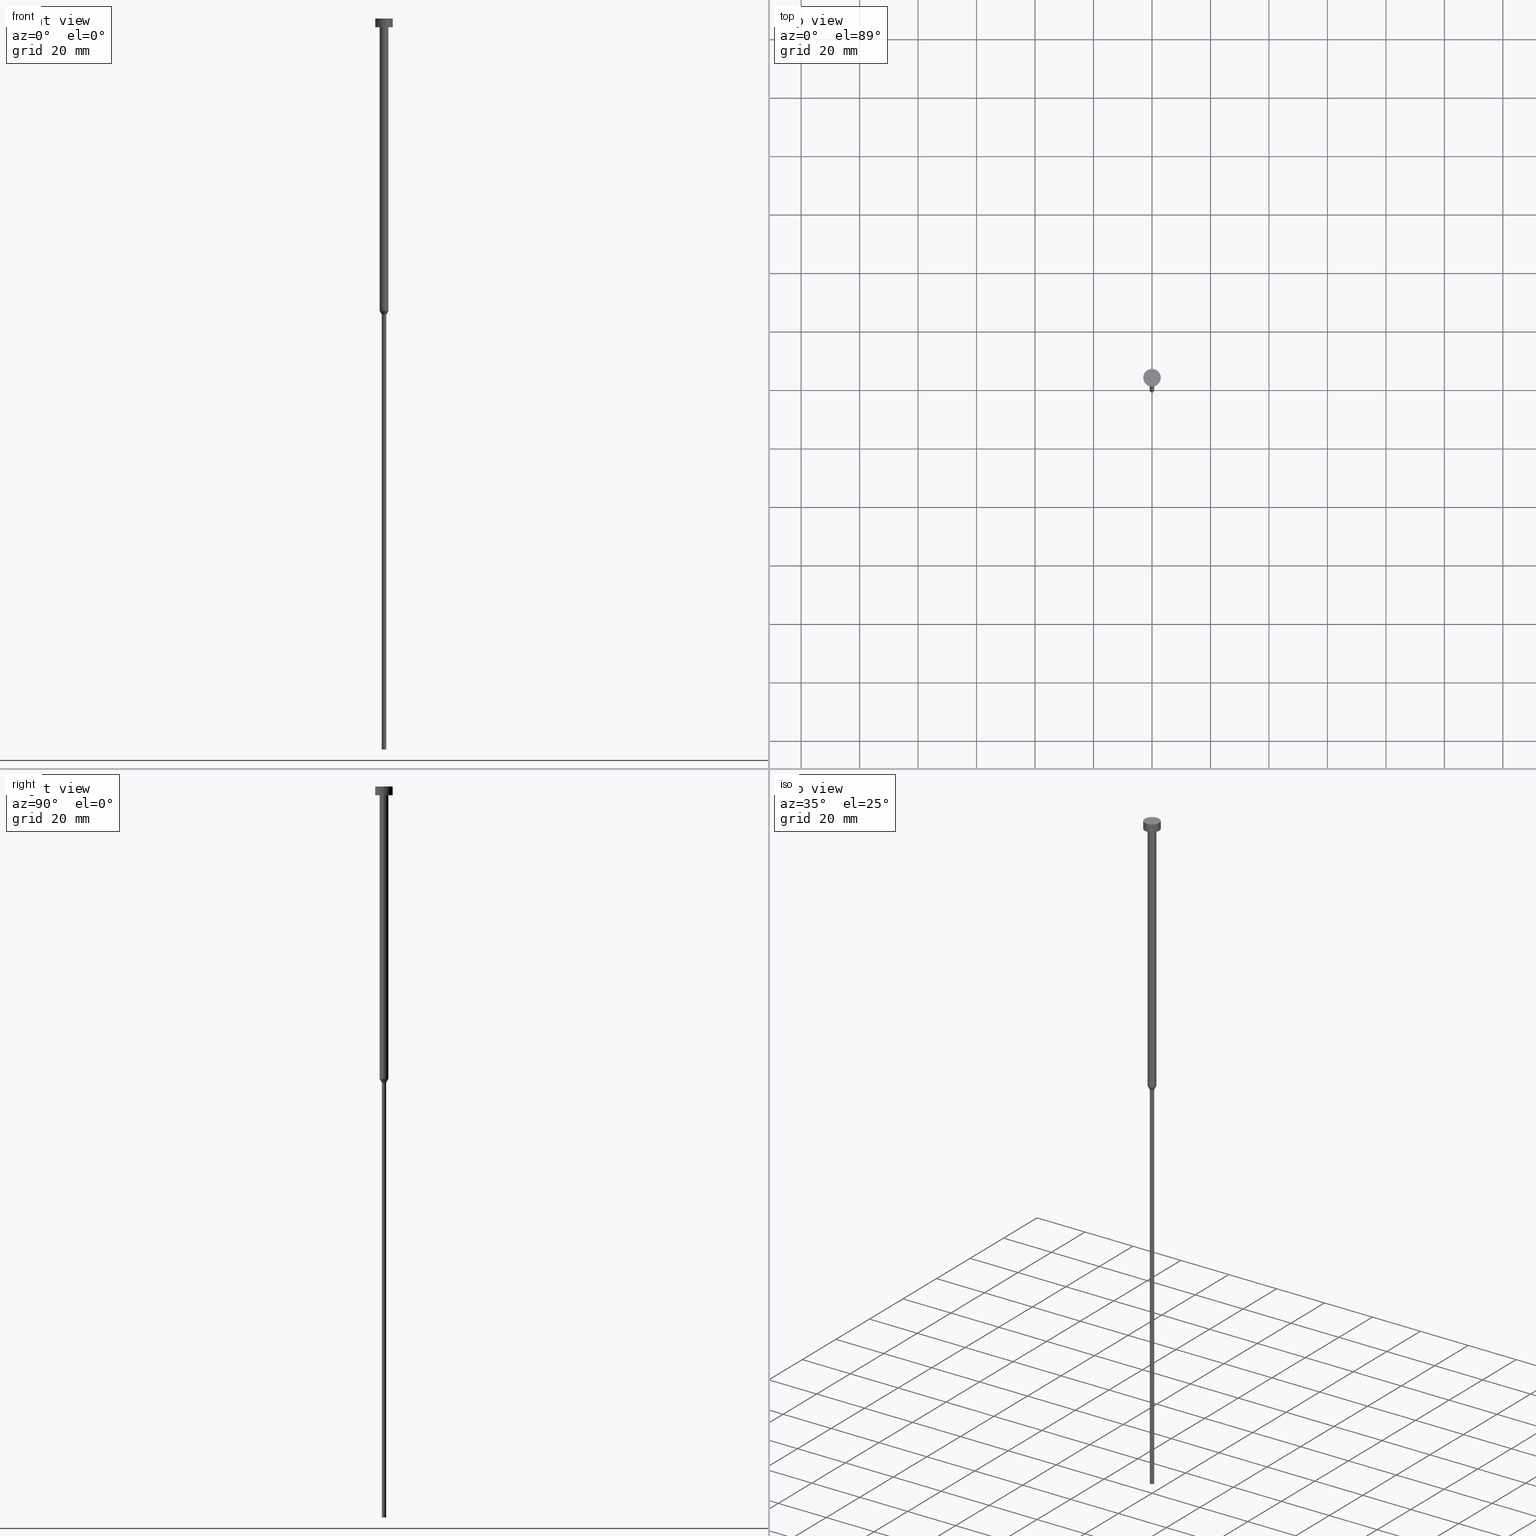
[diagram: canonical four-view strip — front | top / right | iso, engineering-drawing reading convention]
A machine part, canonical four-view strip (front | top / right | iso — engineering-drawing reading convention). The complete STEP part file that produces these views, byte-faithful:
ISO-10303-21;
HEADER;
FILE_DESCRIPTION (( 'STEP AP203' ),
    '1' );
FILE_NAME ('c945.STEP',
    '2023-02-13T09:02:17',
    ( '' ),
    ( '' ),
    'SwSTEP 2.0',
    'SolidWorks 2019',
    '' );
FILE_SCHEMA (( 'CONFIG_CONTROL_DESIGN' ));
ENDSEC;

DATA;
#1 = CARTESIAN_POINT ( 'NONE',  ( 1.500000000000000000, 0.000000000000000000, -100.0000000000000000 ) ) ;
#2 = EDGE_CURVE ( 'NONE', #320, #339, #240, .T. ) ;
#3 = LOCAL_TIME ( 10, 2, 17.00000000000000000, #163 ) ;
#4 = ORIENTED_EDGE ( 'NONE', *, *, #229, .F. ) ;
#5 = ORIENTED_EDGE ( 'NONE', *, *, #2, .T. ) ;
#6 = EDGE_CURVE ( 'NONE', #316, #202, #133, .T. ) ;
#7 = ORIENTED_EDGE ( 'NONE', *, *, #178, .F. ) ;
#8 = EDGE_CURVE ( 'NONE', #320, #56, #161, .T. ) ;
#9 = ORIENTED_EDGE ( 'NONE', *, *, #41, .T. ) ;
#10 = FACE_OUTER_BOUND ( 'NONE', #130, .T. ) ;
#11 = ORIENTED_EDGE ( 'NONE', *, *, #203, .T. ) ;
#12 = DIRECTION ( 'NONE',  ( 1.000000000000000000, 0.000000000000000000, 0.000000000000000000 ) ) ;
#13 = DIRECTION ( 'NONE',  ( -0.000000000000000000, -0.000000000000000000, 1.000000000000000000 ) ) ;
#14 = DIRECTION ( 'NONE',  ( -0.000000000000000000, -0.000000000000000000, 1.000000000000000000 ) ) ;
#15 =( GEOMETRIC_REPRESENTATION_CONTEXT ( 3 ) GLOBAL_UNCERTAINTY_ASSIGNED_CONTEXT ( ( #227 ) ) GLOBAL_UNIT_ASSIGNED_CONTEXT ( ( #306, #153, #144 ) ) REPRESENTATION_CONTEXT ( 'NONE', 'WORKASPACE' ) );
#16 = CALENDAR_DATE ( 2023, 13, 2 ) ;
#17 = CARTESIAN_POINT ( 'NONE',  ( -1.500000000000000000, 1.836970198721029934E-16, 0.000000000000000000 ) ) ;
#18 = APPROVAL_DATE_TIME ( #108, #88 ) ;
#19 = ORIENTED_EDGE ( 'NONE', *, *, #6, .F. ) ;
#20 = ORIENTED_EDGE ( 'NONE', *, *, #268, .T. ) ;
#21 = APPROVAL_ROLE ( '' ) ;
#22 = ADVANCED_FACE ( 'NONE', ( #158 ), #35, .T. ) ;
#23 = DIRECTION ( 'NONE',  ( -0.000000000000000000, -0.000000000000000000, 1.000000000000000000 ) ) ;
#24 = AXIS2_PLACEMENT_3D ( 'NONE', #239, #102, #262 ) ;
#25 = PLANE ( 'NONE',  #64 ) ;
#26 = DIRECTION ( 'NONE',  ( -0.000000000000000000, -0.000000000000000000, 1.000000000000000000 ) ) ;
#27 = CC_DESIGN_APPROVAL ( #352, ( #155 ) ) ;
#28 = DIRECTION ( 'NONE',  ( 0.000000000000000000, -0.000000000000000000, 1.000000000000000000 ) ) ;
#29 = CARTESIAN_POINT ( 'NONE',  ( 0.000000000000000000, 0.000000000000000000, -1.836970198721029934E-16 ) ) ;
#30 = VECTOR ( 'NONE', #272, 1000.000000000000000 ) ;
#31 = ORIENTED_EDGE ( 'NONE', *, *, #123, .F. ) ;
#32 = ORIENTED_EDGE ( 'NONE', *, *, #123, .T. ) ;
#33 = CARTESIAN_POINT ( 'NONE',  ( 0.000000000000000000, 0.000000000000000000, -100.0000000000000000 ) ) ;
#34 = CARTESIAN_POINT ( 'NONE',  ( 1.500000000000000000, 0.000000000000000000, -3.000000000000000888 ) ) ;
#35 = CONICAL_SURFACE ( 'NONE', #24, 1.500000000000000000, 0.5235987755983060321 ) ;
#36 = COORDINATED_UNIVERSAL_TIME_OFFSET ( 1, 0, .AHEAD. ) ;
#37 = DIRECTION ( 'NONE',  ( 1.000000000000000000, 0.000000000000000000, 0.000000000000000000 ) ) ;
#38 = DIRECTION ( 'NONE',  ( 1.000000000000000000, 0.000000000000000000, 0.000000000000000000 ) ) ;
#39 = LOCAL_TIME ( 10, 2, 17.00000000000000000, #344 ) ;
#40 = DIRECTION ( 'NONE',  ( 1.000000000000000000, 0.000000000000000000, 0.000000000000000000 ) ) ;
#41 = EDGE_CURVE ( 'NONE', #131, #254, #63, .T. ) ;
#42 = ADVANCED_FACE ( 'NONE', ( #318 ), #292, .T. ) ;
#43 = DIRECTION ( 'NONE',  ( -0.000000000000000000, -0.000000000000000000, 1.000000000000000000 ) ) ;
#44 = DATE_AND_TIME ( #159, #70 ) ;
#45 = DIRECTION ( 'NONE',  ( 1.000000000000000000, 0.000000000000000000, 0.000000000000000000 ) ) ;
#46 = AXIS2_PLACEMENT_3D ( 'NONE', #324, #299, #50 ) ;
#47 = DATE_AND_TIME ( #104, #3 ) ;
#48 = LINE ( 'NONE', #328, #274 ) ;
#49 = APPROVAL_STATUS ( 'not_yet_approved' ) ;
#50 = DIRECTION ( 'NONE',  ( 1.000000000000000000, 0.000000000000000000, 0.000000000000000000 ) ) ;
#51 = DIRECTION ( 'NONE',  ( -0.000000000000000000, -0.000000000000000000, 1.000000000000000000 ) ) ;
#52 = CC_DESIGN_PERSON_AND_ORGANIZATION_ASSIGNMENT ( #76, #297, ( #155 ) ) ;
#53 = FACE_OUTER_BOUND ( 'NONE', #149, .T. ) ;
#54 = SECURITY_CLASSIFICATION ( '', '', #293 ) ;
#55 = DIRECTION ( 'NONE',  ( -0.000000000000000000, -0.000000000000000000, 1.000000000000000000 ) ) ;
#56 = VERTEX_POINT ( 'NONE', #69 ) ;
#57 = CIRCLE ( 'NONE', #330, 0.7500000000000000000 ) ;
#58 = LINE ( 'NONE', #62, #353 ) ;
#59 = AXIS2_PLACEMENT_3D ( 'NONE', #29, #28, #107 ) ;
#60 = CARTESIAN_POINT ( 'NONE',  ( 0.000000000000000000, 0.000000000000000000, 0.000000000000000000 ) ) ;
#61 = EDGE_CURVE ( 'NONE', #183, #255, #300, .T. ) ;
#62 = CARTESIAN_POINT ( 'NONE',  ( 1.500000000000000000, 0.000000000000000000, 0.000000000000000000 ) ) ;
#63 = LINE ( 'NONE', #17, #244 ) ;
#64 = AXIS2_PLACEMENT_3D ( 'NONE', #351, #224, #327 ) ;
#65 = DIRECTION ( 'NONE',  ( 1.000000000000000000, 0.000000000000000000, 0.000000000000000000 ) ) ;
#66 = EDGE_CURVE ( 'NONE', #56, #122, #126, .T. ) ;
#67 = VERTEX_POINT ( 'NONE', #34 ) ;
#68 = DATE_AND_TIME ( #16, #295 ) ;
#69 = CARTESIAN_POINT ( 'NONE',  ( -0.7500000000000000000, 9.184850993605149670E-17, -250.0000000000000000 ) ) ;
#70 = LOCAL_TIME ( 10, 2, 17.00000000000000000, #190 ) ;
#71 = CIRCLE ( 'NONE', #251, 1.500000000000000000 ) ;
#72 = EDGE_LOOP ( 'NONE', ( #145, #20 ) ) ;
#73 = APPLICATION_CONTEXT ( 'configuration controlled 3d designs of mechanical parts and assemblies' ) ;
#74 = PERSON_AND_ORGANIZATION ( #177, #319 ) ;
#75 = DIRECTION ( 'NONE',  ( 1.000000000000000000, 0.000000000000000000, 0.000000000000000000 ) ) ;
#76 = PERSON_AND_ORGANIZATION ( #177, #319 ) ;
#77 = DIRECTION ( 'NONE',  ( 1.000000000000000000, 0.000000000000000000, 0.000000000000000000 ) ) ;
#78 = AXIS2_PLACEMENT_3D ( 'NONE', #109, #354, #220 ) ;
#79 = CALENDAR_DATE ( 2023, 13, 2 ) ;
#80 = DIRECTION ( 'NONE',  ( -0.000000000000000000, -0.000000000000000000, 1.000000000000000000 ) ) ;
#81 = AXIS2_PLACEMENT_3D ( 'NONE', #154, #14, #40 ) ;
#82 = CARTESIAN_POINT ( 'NONE',  ( 0.000000000000000000, 0.000000000000000000, -101.2990381056766438 ) ) ;
#83 = PRODUCT_RELATED_PRODUCT_CATEGORY ( 'detail', '', ( #157 ) ) ;
#84 = CARTESIAN_POINT ( 'NONE',  ( 1.500000000000000000, 0.000000000000000000, -100.0000000000000000 ) ) ;
#85 = AXIS2_PLACEMENT_3D ( 'NONE', #232, #198, #235 ) ;
#86 = EDGE_CURVE ( 'NONE', #122, #339, #278, .T. ) ;
#87 = AXIS2_PLACEMENT_3D ( 'NONE', #152, #257, #12 ) ;
#88 = APPROVAL ( #49, 'NEUR�EN�' ) ;
#89 = AXIS2_PLACEMENT_3D ( 'NONE', #138, #26, #222 ) ;
#90 = EDGE_LOOP ( 'NONE', ( #98, #234 ) ) ;
#91 = CARTESIAN_POINT ( 'NONE',  ( 3.000000000000000000, 0.000000000000000000, -3.673940397442059868E-16 ) ) ;
#92 = EDGE_LOOP ( 'NONE', ( #259, #279 ) ) ;
#93 = CYLINDRICAL_SURFACE ( 'NONE', #172, 1.500000000000000000 ) ;
#94 = APPLICATION_CONTEXT ( 'configuration controlled 3d designs of mechanical parts and assemblies' ) ;
#95 = PERSON_AND_ORGANIZATION ( #177, #319 ) ;
#96 = ORIENTED_EDGE ( 'NONE', *, *, #41, .F. ) ;
#97 = DIRECTION ( 'NONE',  ( -0.000000000000000000, -0.000000000000000000, 1.000000000000000000 ) ) ;
#98 = ORIENTED_EDGE ( 'NONE', *, *, #6, .T. ) ;
#99 = COORDINATED_UNIVERSAL_TIME_OFFSET ( 1, 0, .AHEAD. ) ;
#100 = CC_DESIGN_PERSON_AND_ORGANIZATION_ASSIGNMENT ( #270, #266, ( #54 ) ) ;
#101 = ORIENTED_EDGE ( 'NONE', *, *, #178, .T. ) ;
#102 = DIRECTION ( 'NONE',  ( -0.000000000000000000, -0.000000000000000000, 1.000000000000000000 ) ) ;
#103 = CIRCLE ( 'NONE', #46, 3.000000000000000000 ) ;
#104 = CALENDAR_DATE ( 2023, 13, 2 ) ;
#105 = DIRECTION ( 'NONE',  ( -0.000000000000000000, -0.000000000000000000, 1.000000000000000000 ) ) ;
#106 = SHAPE_DEFINITION_REPRESENTATION ( #287, #301 ) ;
#107 = DIRECTION ( 'NONE',  ( 1.000000000000000000, 0.000000000000000000, 0.000000000000000000 ) ) ;
#108 = DATE_AND_TIME ( #79, #39 ) ;
#109 = CARTESIAN_POINT ( 'NONE',  ( 0.000000000000000000, 0.000000000000000000, -3.000000000000000888 ) ) ;
#110 = APPROVAL_PERSON_ORGANIZATION ( #341, #88, #349 ) ;
#111 = FACE_OUTER_BOUND ( 'NONE', #90, .T. ) ;
#112 = EDGE_CURVE ( 'NONE', #131, #230, #264, .T. ) ;
#113 = CARTESIAN_POINT ( 'NONE',  ( 0.000000000000000000, 0.000000000000000000, 0.000000000000000000 ) ) ;
#114 = DIRECTION ( 'NONE',  ( -0.000000000000000000, -0.000000000000000000, 1.000000000000000000 ) ) ;
#115 = ORIENTED_EDGE ( 'NONE', *, *, #286, .F. ) ;
#116 = CIRCLE ( 'NONE', #167, 0.7500000000000000000 ) ;
#117 = ORIENTED_EDGE ( 'NONE', *, *, #219, .F. ) ;
#118 = DIRECTION ( 'NONE',  ( 1.000000000000000000, 0.000000000000000000, 0.000000000000000000 ) ) ;
#119 = AXIS2_PLACEMENT_3D ( 'NONE', #33, #97, #118 ) ;
#120 = EDGE_LOOP ( 'NONE', ( #96, #309, #277, #333 ) ) ;
#121 = PERSON_AND_ORGANIZATION ( #177, #319 ) ;
#122 = VERTEX_POINT ( 'NONE', #216 ) ;
#123 = EDGE_CURVE ( 'NONE', #122, #131, #355, .T. ) ;
#124 = FACE_OUTER_BOUND ( 'NONE', #253, .T. ) ;
#125 = VECTOR ( 'NONE', #151, 1000.000000000000000 ) ;
#126 = LINE ( 'NONE', #181, #201 ) ;
#127 = ADVANCED_FACE ( 'NONE', ( #218 ), #194, .T. ) ;
#128 = ORIENTED_EDGE ( 'NONE', *, *, #8, .T. ) ;
#129 = AXIS2_PLACEMENT_3D ( 'NONE', #345, #185, #38 ) ;
#130 = EDGE_LOOP ( 'NONE', ( #31, #143, #290, #252 ) ) ;
#131 = VERTEX_POINT ( 'NONE', #187 ) ;
#132 = FACE_OUTER_BOUND ( 'NONE', #288, .T. ) ;
#133 = CIRCLE ( 'NONE', #210, 3.000000000000000000 ) ;
#134 = APPROVAL_STATUS ( 'not_yet_approved' ) ;
#135 = CYLINDRICAL_SURFACE ( 'NONE', #223, 3.000000000000000000 ) ;
#136 = AXIS2_PLACEMENT_3D ( 'NONE', #189, #350, #296 ) ;
#137 = ADVANCED_FACE ( 'NONE', ( #191 ), #135, .T. ) ;
#138 = CARTESIAN_POINT ( 'NONE',  ( 0.000000000000000000, 0.000000000000000000, -3.000000000000000888 ) ) ;
#139 = EDGE_CURVE ( 'NONE', #56, #320, #57, .T. ) ;
#140 = CARTESIAN_POINT ( 'NONE',  ( 0.000000000000000000, 0.000000000000000000, 0.000000000000000000 ) ) ;
#141 = CC_DESIGN_APPROVAL ( #263, ( #54 ) ) ;
#142 = EDGE_LOOP ( 'NONE', ( #310, #343, #19, #336 ) ) ;
#143 = ORIENTED_EDGE ( 'NONE', *, *, #86, .T. ) ;
#144 =( NAMED_UNIT ( * ) SI_UNIT ( $, .STERADIAN. ) SOLID_ANGLE_UNIT ( ) );
#145 = ORIENTED_EDGE ( 'NONE', *, *, #249, .T. ) ;
#146 = ADVANCED_FACE ( 'NONE', ( #294, #246 ), #25, .T. ) ;
#147 = CARTESIAN_POINT ( 'NONE',  ( 0.000000000000000000, 0.000000000000000000, 0.000000000000000000 ) ) ;
#148 = CONICAL_SURFACE ( 'NONE', #282, 1.500000000000000000, 0.5235987755983060321 ) ;
#149 = EDGE_LOOP ( 'NONE', ( #331, #265, #5, #175 ) ) ;
#150 = MANIFOLD_SOLID_BREP ( 'Rotovat1', #342 ) ;
#151 = DIRECTION ( 'NONE',  ( 0.5000000000000062172, 0.000000000000000000, 0.8660254037844350439 ) ) ;
#152 = CARTESIAN_POINT ( 'NONE',  ( 0.000000000000000000, 0.000000000000000000, -101.2990381056766438 ) ) ;
#153 =( NAMED_UNIT ( * ) PLANE_ANGLE_UNIT ( ) SI_UNIT ( $, .RADIAN. ) );
#154 = CARTESIAN_POINT ( 'NONE',  ( 0.000000000000000000, 0.000000000000000000, -3.000000000000000888 ) ) ;
#155 = PRODUCT_DEFINITION ( 'NEZN�M�', '', #221, #305 ) ;
#156 = CARTESIAN_POINT ( 'NONE',  ( 0.000000000000000000, 0.000000000000000000, 0.000000000000000000 ) ) ;
#157 = PRODUCT ( 'c945', 'c945', '', ( #179 ) ) ;
#158 = FACE_OUTER_BOUND ( 'NONE', #242, .T. ) ;
#159 = CALENDAR_DATE ( 2023, 13, 2 ) ;
#160 = CARTESIAN_POINT ( 'NONE',  ( 0.000000000000000000, 0.000000000000000000, -100.0000000000000000 ) ) ;
#161 = CIRCLE ( 'NONE', #129, 0.7500000000000000000 ) ;
#162 = DIRECTION ( 'NONE',  ( -0.000000000000000000, -0.000000000000000000, 1.000000000000000000 ) ) ;
#163 = COORDINATED_UNIVERSAL_TIME_OFFSET ( 1, 0, .AHEAD. ) ;
#164 = DIRECTION ( 'NONE',  ( -0.000000000000000000, -0.000000000000000000, 1.000000000000000000 ) ) ;
#165 = APPROVAL_PERSON_ORGANIZATION ( #95, #352, #312 ) ;
#166 = CARTESIAN_POINT ( 'NONE',  ( -1.500000000000000000, 1.836970198721029934E-16, -100.0000000000000000 ) ) ;
#167 = AXIS2_PLACEMENT_3D ( 'NONE', #82, #23, #45 ) ;
#168 = LINE ( 'NONE', #171, #30 ) ;
#169 = CC_DESIGN_PERSON_AND_ORGANIZATION_ASSIGNMENT ( #74, #321, ( #221 ) ) ;
#170 = CARTESIAN_POINT ( 'NONE',  ( -3.000000000000000000, 3.673940397442059868E-16, -3.000000000000000888 ) ) ;
#171 = CARTESIAN_POINT ( 'NONE',  ( -3.000000000000000000, 3.673940397442059868E-16, 0.000000000000000000 ) ) ;
#172 = AXIS2_PLACEMENT_3D ( 'NONE', #284, #314, #65 ) ;
#173 = CARTESIAN_POINT ( 'NONE',  ( 0.7500000000000000000, 0.000000000000000000, -250.0000000000000000 ) ) ;
#174 = VECTOR ( 'NONE', #184, 1000.000000000000000 ) ;
#175 = ORIENTED_EDGE ( 'NONE', *, *, #86, .F. ) ;
#176 = ORIENTED_EDGE ( 'NONE', *, *, #8, .F. ) ;
#177 = PERSON ( 'NEUR�EN�', 'NEUR�EN�', 'NEUR�EN�', ('NEUR�EN�'), ('NEUR�EN�'), ('NEUR�EN�') ) ;
#178 = EDGE_CURVE ( 'NONE', #339, #122, #116, .T. ) ;
#179 = MECHANICAL_CONTEXT ( 'NONE', #73, 'mechanical' ) ;
#180 = CIRCLE ( 'NONE', #78, 3.000000000000000000 ) ;
#181 = CARTESIAN_POINT ( 'NONE',  ( -0.7500000000000000000, 9.184850993605149670E-17, 0.000000000000000000 ) ) ;
#182 = CYLINDRICAL_SURFACE ( 'NONE', #346, 0.7500000000000000000 ) ;
#183 = VERTEX_POINT ( 'NONE', #170 ) ;
#184 = DIRECTION ( 'NONE',  ( -0.000000000000000000, -0.000000000000000000, 1.000000000000000000 ) ) ;
#185 = DIRECTION ( 'NONE',  ( -0.000000000000000000, -0.000000000000000000, 1.000000000000000000 ) ) ;
#186 = ORIENTED_EDGE ( 'NONE', *, *, #2, .F. ) ;
#187 = CARTESIAN_POINT ( 'NONE',  ( -1.500000000000000000, 1.836970198721029934E-16, -100.0000000000000000 ) ) ;
#188 = APPROVAL_DATE_TIME ( #68, #263 ) ;
#189 = CARTESIAN_POINT ( 'NONE',  ( 0.000000000000000000, 0.000000000000000000, -250.0000000000000000 ) ) ;
#190 = COORDINATED_UNIVERSAL_TIME_OFFSET ( 1, 0, .AHEAD. ) ;
#191 = FACE_OUTER_BOUND ( 'NONE', #142, .T. ) ;
#192 = VECTOR ( 'NONE', #323, 1000.000000000000000 ) ;
#193 = CARTESIAN_POINT ( 'NONE',  ( 3.000000000000000000, 0.000000000000000000, -3.000000000000000888 ) ) ;
#194 = CYLINDRICAL_SURFACE ( 'NONE', #285, 0.7500000000000000000 ) ;
#195 = ADVANCED_FACE ( 'NONE', ( #132 ), #275, .T. ) ;
#196 = ORIENTED_EDGE ( 'NONE', *, *, #304, .T. ) ;
#197 = LOCAL_TIME ( 10, 2, 17.00000000000000000, #36 ) ;
#198 = DIRECTION ( 'NONE',  ( -0.000000000000000000, -0.000000000000000000, 1.000000000000000000 ) ) ;
#199 = ADVANCED_FACE ( 'NONE', ( #111 ), #269, .T. ) ;
#200 = CARTESIAN_POINT ( 'NONE',  ( 0.7500000000000000000, 0.000000000000000000, -101.2990381056766438 ) ) ;
#201 = VECTOR ( 'NONE', #237, 1000.000000000000000 ) ;
#202 = VERTEX_POINT ( 'NONE', #245 ) ;
#203 = EDGE_CURVE ( 'NONE', #255, #316, #48, .T. ) ;
#204 = DIRECTION ( 'NONE',  ( 1.000000000000000000, 0.000000000000000000, 0.000000000000000000 ) ) ;
#205 = ORIENTED_EDGE ( 'NONE', *, *, #61, .T. ) ;
#206 = APPROVAL_STATUS ( 'not_yet_approved' ) ;
#207 = CC_DESIGN_APPROVAL ( #88, ( #221 ) ) ;
#208 = EDGE_LOOP ( 'NONE', ( #4, #205, #11, #117 ) ) ;
#209 = FACE_OUTER_BOUND ( 'NONE', #120, .T. ) ;
#210 = AXIS2_PLACEMENT_3D ( 'NONE', #212, #211, #214 ) ;
#211 = DIRECTION ( 'NONE',  ( -0.000000000000000000, -0.000000000000000000, 1.000000000000000000 ) ) ;
#212 = CARTESIAN_POINT ( 'NONE',  ( 0.000000000000000000, 0.000000000000000000, -3.673940397442059868E-16 ) ) ;
#213 = EDGE_CURVE ( 'NONE', #255, #183, #180, .T. ) ;
#214 = DIRECTION ( 'NONE',  ( 1.000000000000000000, 0.000000000000000000, 0.000000000000000000 ) ) ;
#215 = PERSON_AND_ORGANIZATION ( #177, #319 ) ;
#216 = CARTESIAN_POINT ( 'NONE',  ( -0.7500000000000000000, 9.184850993605149670E-17, -101.2990381056766438 ) ) ;
#217 = PERSON_AND_ORGANIZATION ( #177, #319 ) ;
#218 = FACE_OUTER_BOUND ( 'NONE', #313, .T. ) ;
#219 = EDGE_CURVE ( 'NONE', #202, #316, #103, .T. ) ;
#220 = DIRECTION ( 'NONE',  ( 1.000000000000000000, 0.000000000000000000, 0.000000000000000000 ) ) ;
#221 = PRODUCT_DEFINITION_FORMATION_WITH_SPECIFIED_SOURCE ( 'LIBOVOLN�', '', #157, .NOT_KNOWN. ) ;
#222 = DIRECTION ( 'NONE',  ( 1.000000000000000000, 0.000000000000000000, 0.000000000000000000 ) ) ;
#223 = AXIS2_PLACEMENT_3D ( 'NONE', #113, #271, #322 ) ;
#224 = DIRECTION ( 'NONE',  ( 0.000000000000000000, 0.000000000000000000, -1.000000000000000000 ) ) ;
#225 = CC_DESIGN_PERSON_AND_ORGANIZATION_ASSIGNMENT ( #121, #233, ( #157 ) ) ;
#226 = CYLINDRICAL_SURFACE ( 'NONE', #85, 1.500000000000000000 ) ;
#227 = UNCERTAINTY_MEASURE_WITH_UNIT (LENGTH_MEASURE( 1.000000000000000082E-05 ), #306, 'distance_accuracy_value', 'NONE');
#228 = ORIENTED_EDGE ( 'NONE', *, *, #66, .T. ) ;
#229 = EDGE_CURVE ( 'NONE', #183, #202, #168, .T. ) ;
#230 = VERTEX_POINT ( 'NONE', #84 ) ;
#231 = ORIENTED_EDGE ( 'NONE', *, *, #249, .F. ) ;
#232 = CARTESIAN_POINT ( 'NONE',  ( 0.000000000000000000, 0.000000000000000000, 0.000000000000000000 ) ) ;
#233 = PERSON_AND_ORGANIZATION_ROLE ( 'design_owner' ) ;
#234 = ORIENTED_EDGE ( 'NONE', *, *, #219, .T. ) ;
#235 = DIRECTION ( 'NONE',  ( 1.000000000000000000, 0.000000000000000000, 0.000000000000000000 ) ) ;
#236 = CIRCLE ( 'NONE', #119, 1.500000000000000000 ) ;
#237 = DIRECTION ( 'NONE',  ( -0.000000000000000000, -0.000000000000000000, 1.000000000000000000 ) ) ;
#238 = DATE_TIME_ROLE ( 'creation_date' ) ;
#239 = CARTESIAN_POINT ( 'NONE',  ( 0.000000000000000000, 0.000000000000000000, -100.0000000000000000 ) ) ;
#240 = LINE ( 'NONE', #348, #174 ) ;
#241 = CIRCLE ( 'NONE', #89, 1.500000000000000000 ) ;
#242 = EDGE_LOOP ( 'NONE', ( #101, #32, #283, #307 ) ) ;
#243 = DIRECTION ( 'NONE',  ( 1.000000000000000000, 0.000000000000000000, 0.000000000000000000 ) ) ;
#244 = VECTOR ( 'NONE', #43, 1000.000000000000000 ) ;
#245 = CARTESIAN_POINT ( 'NONE',  ( -3.000000000000000000, 3.673940397442059868E-16, -3.673940397442059868E-16 ) ) ;
#246 = FACE_OUTER_BOUND ( 'NONE', #92, .T. ) ;
#247 = APPROVAL_PERSON_ORGANIZATION ( #217, #263, #21 ) ;
#248 = DIRECTION ( 'NONE',  ( 1.000000000000000000, 0.000000000000000000, 0.000000000000000000 ) ) ;
#249 = EDGE_CURVE ( 'NONE', #67, #254, #241, .T. ) ;
#250 = CARTESIAN_POINT ( 'NONE',  ( 0.000000000000000000, 0.000000000000000000, -250.0000000000000000 ) ) ;
#251 = AXIS2_PLACEMENT_3D ( 'NONE', #302, #51, #248 ) ;
#252 = ORIENTED_EDGE ( 'NONE', *, *, #112, .F. ) ;
#253 = EDGE_LOOP ( 'NONE', ( #196, #9, #231, #115 ) ) ;
#254 = VERTEX_POINT ( 'NONE', #303 ) ;
#255 = VERTEX_POINT ( 'NONE', #193 ) ;
#256 = APPLICATION_PROTOCOL_DEFINITION ( 'international standard', 'config_control_design', 1994, #73 ) ;
#257 = DIRECTION ( 'NONE',  ( -0.000000000000000000, -0.000000000000000000, 1.000000000000000000 ) ) ;
#258 = CALENDAR_DATE ( 2023, 13, 2 ) ;
#259 = ORIENTED_EDGE ( 'NONE', *, *, #213, .F. ) ;
#260 = PERSON_AND_ORGANIZATION_ROLE ( 'creator' ) ;
#261 = CC_DESIGN_SECURITY_CLASSIFICATION ( #54, ( #221 ) ) ;
#262 = DIRECTION ( 'NONE',  ( 1.000000000000000000, 0.000000000000000000, 0.000000000000000000 ) ) ;
#263 = APPROVAL ( #134, 'NEUR�EN�' ) ;
#264 = CIRCLE ( 'NONE', #315, 1.500000000000000000 ) ;
#265 = ORIENTED_EDGE ( 'NONE', *, *, #139, .T. ) ;
#266 = PERSON_AND_ORGANIZATION_ROLE ( 'classification_officer' ) ;
#267 = DATE_TIME_ROLE ( 'classification_date' ) ;
#268 = EDGE_CURVE ( 'NONE', #254, #67, #71, .T. ) ;
#269 = PLANE ( 'NONE',  #59 ) ;
#270 = PERSON_AND_ORGANIZATION ( #177, #319 ) ;
#271 = DIRECTION ( 'NONE',  ( -0.000000000000000000, -0.000000000000000000, 1.000000000000000000 ) ) ;
#272 = DIRECTION ( 'NONE',  ( -0.000000000000000000, -0.000000000000000000, 1.000000000000000000 ) ) ;
#273 = DIRECTION ( 'NONE',  ( -0.000000000000000000, -0.000000000000000000, 1.000000000000000000 ) ) ;
#274 = VECTOR ( 'NONE', #80, 1000.000000000000000 ) ;
#275 = PLANE ( 'NONE',  #136 ) ;
#276 = ADVANCED_FACE ( 'NONE', ( #53 ), #182, .T. ) ;
#277 = ORIENTED_EDGE ( 'NONE', *, *, #286, .T. ) ;
#278 = CIRCLE ( 'NONE', #87, 0.7500000000000000000 ) ;
#279 = ORIENTED_EDGE ( 'NONE', *, *, #61, .F. ) ;
#280 = ORIENTED_EDGE ( 'NONE', *, *, #139, .F. ) ;
#281 = ADVANCED_FACE ( 'NONE', ( #10 ), #148, .T. ) ;
#282 = AXIS2_PLACEMENT_3D ( 'NONE', #334, #13, #329 ) ;
#283 = ORIENTED_EDGE ( 'NONE', *, *, #304, .F. ) ;
#284 = CARTESIAN_POINT ( 'NONE',  ( 0.000000000000000000, 0.000000000000000000, 0.000000000000000000 ) ) ;
#285 = AXIS2_PLACEMENT_3D ( 'NONE', #140, #273, #243 ) ;
#286 = EDGE_CURVE ( 'NONE', #230, #67, #58, .T. ) ;
#287 = PRODUCT_DEFINITION_SHAPE ( 'NONE', 'NONE',  #155 ) ;
#288 = EDGE_LOOP ( 'NONE', ( #176, #280 ) ) ;
#289 = LINE ( 'NONE', #1, #125 ) ;
#290 = ORIENTED_EDGE ( 'NONE', *, *, #335, .T. ) ;
#291 = CC_DESIGN_PERSON_AND_ORGANIZATION_ASSIGNMENT ( #215, #260, ( #221 ) ) ;
#292 = CYLINDRICAL_SURFACE ( 'NONE', #308, 3.000000000000000000 ) ;
#293 = SECURITY_CLASSIFICATION_LEVEL ( 'unclassified' ) ;
#294 = FACE_BOUND ( 'NONE', #72, .T. ) ;
#295 = LOCAL_TIME ( 10, 2, 17.00000000000000000, #99 ) ;
#296 = DIRECTION ( 'NONE',  ( -1.000000000000000000, 0.000000000000000000, -0.000000000000000000 ) ) ;
#297 = PERSON_AND_ORGANIZATION_ROLE ( 'creator' ) ;
#298 = ADVANCED_FACE ( 'NONE', ( #124 ), #226, .T. ) ;
#299 = DIRECTION ( 'NONE',  ( -0.000000000000000000, -0.000000000000000000, 1.000000000000000000 ) ) ;
#300 = CIRCLE ( 'NONE', #81, 3.000000000000000000 ) ;
#301 = ADVANCED_BREP_SHAPE_REPRESENTATION ( 'c945', ( #150, #311 ), #15 ) ;
#302 = CARTESIAN_POINT ( 'NONE',  ( 0.000000000000000000, 0.000000000000000000, -3.000000000000000888 ) ) ;
#303 = CARTESIAN_POINT ( 'NONE',  ( -1.500000000000000000, 1.836970198721029934E-16, -3.000000000000000888 ) ) ;
#304 = EDGE_CURVE ( 'NONE', #230, #131, #236, .T. ) ;
#305 = DESIGN_CONTEXT ( 'detailed design', #94, 'design' ) ;
#306 =( LENGTH_UNIT ( ) NAMED_UNIT ( * ) SI_UNIT ( .MILLI., .METRE. ) );
#307 = ORIENTED_EDGE ( 'NONE', *, *, #335, .F. ) ;
#308 = AXIS2_PLACEMENT_3D ( 'NONE', #60, #162, #37 ) ;
#309 = ORIENTED_EDGE ( 'NONE', *, *, #112, .T. ) ;
#310 = ORIENTED_EDGE ( 'NONE', *, *, #213, .T. ) ;
#311 = AXIS2_PLACEMENT_3D ( 'NONE', #147, #337, #204 ) ;
#312 = APPROVAL_ROLE ( '' ) ;
#313 = EDGE_LOOP ( 'NONE', ( #128, #228, #7, #186 ) ) ;
#314 = DIRECTION ( 'NONE',  ( -0.000000000000000000, -0.000000000000000000, 1.000000000000000000 ) ) ;
#315 = AXIS2_PLACEMENT_3D ( 'NONE', #160, #164, #77 ) ;
#316 = VERTEX_POINT ( 'NONE', #91 ) ;
#317 = APPROVAL_DATE_TIME ( #347, #352 ) ;
#318 = FACE_OUTER_BOUND ( 'NONE', #208, .T. ) ;
#319 = ORGANIZATION ( 'NEUR�EN�', 'NEUR�EN�', '' ) ;
#320 = VERTEX_POINT ( 'NONE', #173 ) ;
#321 = PERSON_AND_ORGANIZATION_ROLE ( 'design_supplier' ) ;
#322 = DIRECTION ( 'NONE',  ( 1.000000000000000000, 0.000000000000000000, 0.000000000000000000 ) ) ;
#323 = DIRECTION ( 'NONE',  ( -0.5000000000000062172, 6.123233995736842457E-17, 0.8660254037844350439 ) ) ;
#324 = CARTESIAN_POINT ( 'NONE',  ( 0.000000000000000000, 0.000000000000000000, -3.673940397442059868E-16 ) ) ;
#325 = ADVANCED_FACE ( 'NONE', ( #209 ), #93, .T. ) ;
#326 = CC_DESIGN_DATE_AND_TIME_ASSIGNMENT ( #44, #267, ( #54 ) ) ;
#327 = DIRECTION ( 'NONE',  ( -1.000000000000000000, 0.000000000000000000, -0.000000000000000000 ) ) ;
#328 = CARTESIAN_POINT ( 'NONE',  ( 3.000000000000000000, 0.000000000000000000, 0.000000000000000000 ) ) ;
#329 = DIRECTION ( 'NONE',  ( 1.000000000000000000, 0.000000000000000000, 0.000000000000000000 ) ) ;
#330 = AXIS2_PLACEMENT_3D ( 'NONE', #250, #105, #75 ) ;
#331 = ORIENTED_EDGE ( 'NONE', *, *, #66, .F. ) ;
#332 = CC_DESIGN_DATE_AND_TIME_ASSIGNMENT ( #47, #238, ( #155 ) ) ;
#333 = ORIENTED_EDGE ( 'NONE', *, *, #268, .F. ) ;
#334 = CARTESIAN_POINT ( 'NONE',  ( 0.000000000000000000, 0.000000000000000000, -100.0000000000000000 ) ) ;
#335 = EDGE_CURVE ( 'NONE', #339, #230, #289, .T. ) ;
#336 = ORIENTED_EDGE ( 'NONE', *, *, #203, .F. ) ;
#337 = DIRECTION ( 'NONE',  ( 0.000000000000000000, 0.000000000000000000, 1.000000000000000000 ) ) ;
#338 = APPLICATION_PROTOCOL_DEFINITION ( 'international standard', 'config_control_design', 1994, #94 ) ;
#339 = VERTEX_POINT ( 'NONE', #200 ) ;
#340 = DIRECTION ( 'NONE',  ( 1.000000000000000000, 0.000000000000000000, 0.000000000000000000 ) ) ;
#341 = PERSON_AND_ORGANIZATION ( #177, #319 ) ;
#342 = CLOSED_SHELL ( 'NONE', ( #137, #298, #22, #127, #195, #276, #281, #325, #146, #42, #199 ) ) ;
#343 = ORIENTED_EDGE ( 'NONE', *, *, #229, .T. ) ;
#344 = COORDINATED_UNIVERSAL_TIME_OFFSET ( 1, 0, .AHEAD. ) ;
#345 = CARTESIAN_POINT ( 'NONE',  ( 0.000000000000000000, 0.000000000000000000, -250.0000000000000000 ) ) ;
#346 = AXIS2_PLACEMENT_3D ( 'NONE', #156, #55, #340 ) ;
#347 = DATE_AND_TIME ( #258, #197 ) ;
#348 = CARTESIAN_POINT ( 'NONE',  ( 0.7500000000000000000, 0.000000000000000000, 0.000000000000000000 ) ) ;
#349 = APPROVAL_ROLE ( '' ) ;
#350 = DIRECTION ( 'NONE',  ( 0.000000000000000000, 0.000000000000000000, -1.000000000000000000 ) ) ;
#351 = CARTESIAN_POINT ( 'NONE',  ( 0.000000000000000000, -3.000000000000000000, -3.000000000000000888 ) ) ;
#352 = APPROVAL ( #206, 'NEUR�EN�' ) ;
#353 = VECTOR ( 'NONE', #114, 1000.000000000000000 ) ;
#354 = DIRECTION ( 'NONE',  ( -0.000000000000000000, -0.000000000000000000, 1.000000000000000000 ) ) ;
#355 = LINE ( 'NONE', #166, #192 ) ;
ENDSEC;
END-ISO-10303-21;
